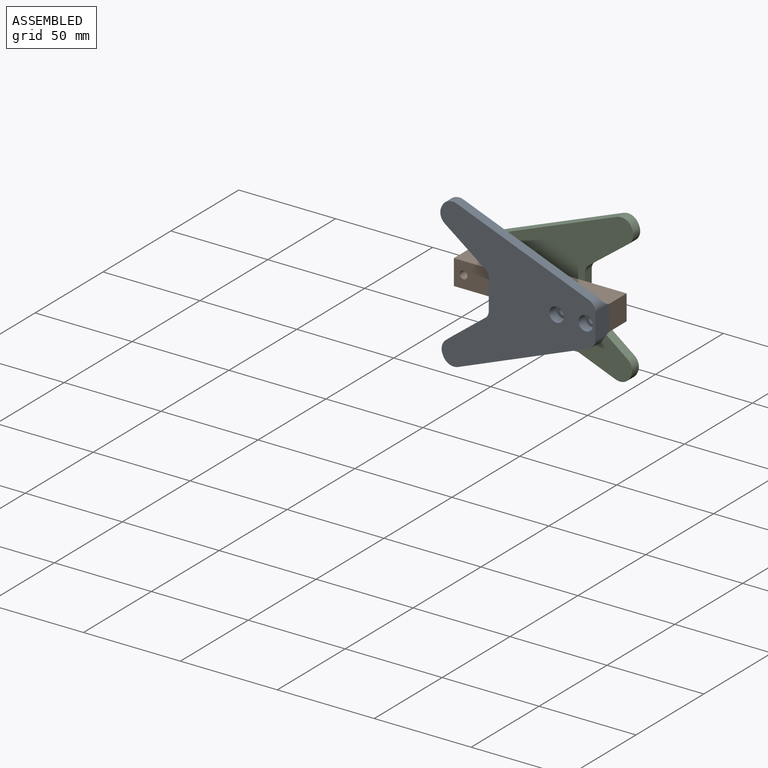
[diagram: assembled view]
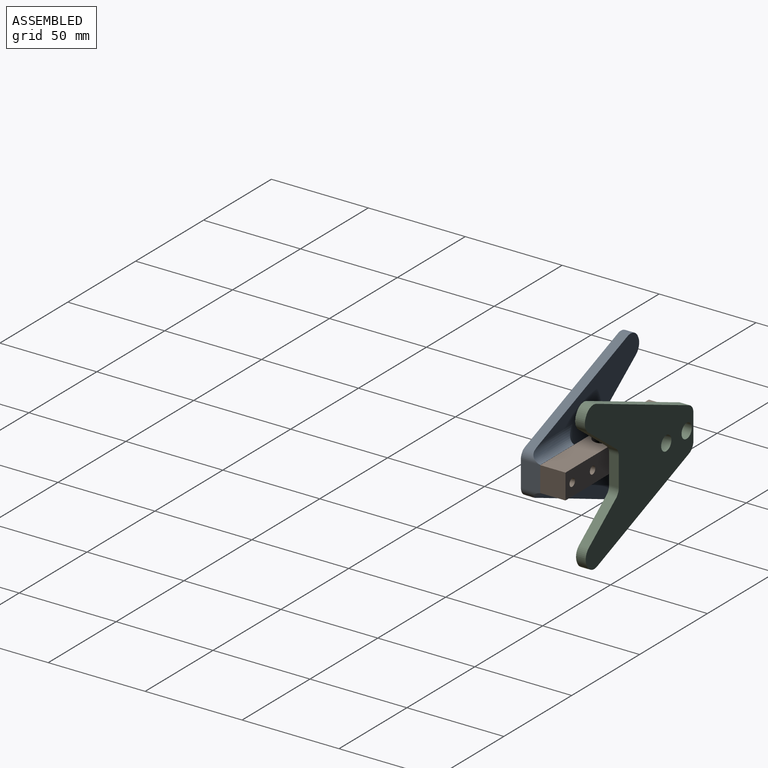
[diagram: assembled view, second angle]
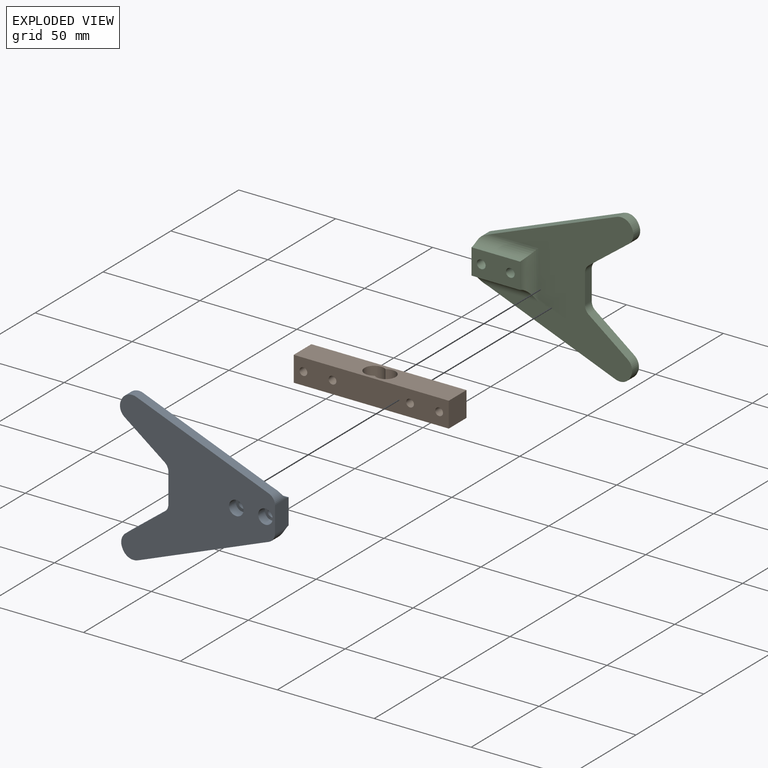
[diagram: exploded view]
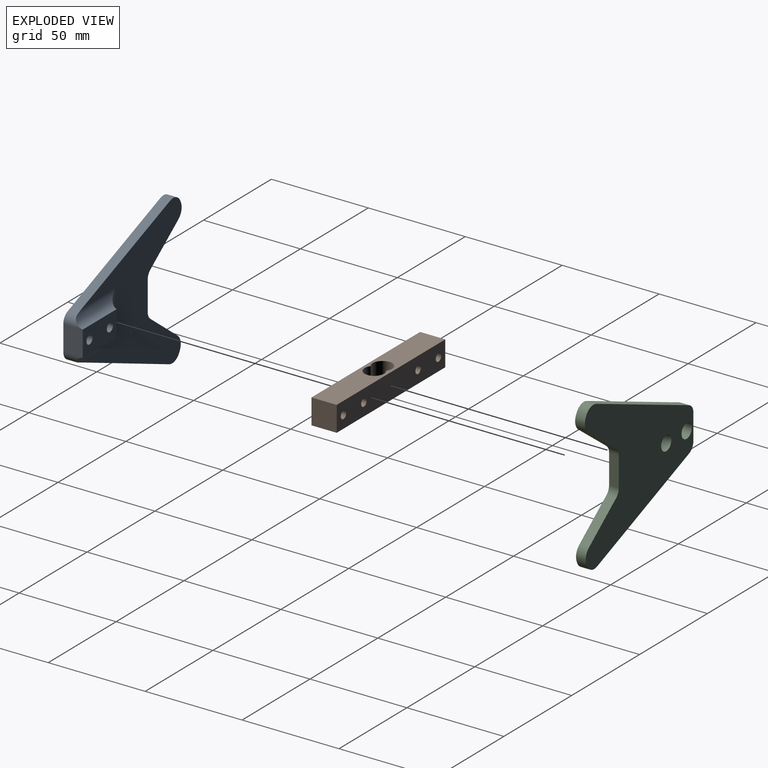
[diagram: exploded view, second angle]
ASSEMBLY  parts=3 mates=2
PART A: 28 faces, bbox 80x10x76.8 mm
  f0: cylinder r=2.25mm len=5mm, axis (0,1,0), area 70.7mm2, adj f16,f27
  f1: cylinder r=2.25mm len=5mm, axis (0,1,0), area 70.7mm2, adj f16,f25
  f2: plane 76.81x73.64mm, normal (0,1,0), area 2334.6mm2, adj f5,f6,f7,f8,f9,f10,f11,f12
  f3: plane 13.19x10mm, normal (1,0,0), area 131.9mm2, adj f4,f14,f15,f16
  f4: cylinder r=5mm len=10mm, axis (0,1,0), area 37.8mm2, adj f3,f5,f15,f17
  f5: plane 68.35x26.78mm, normal (0.36,0,0.93), area 367.1mm2, adj f2,f4,f15,f17,f20
  f6: plane 5x0.62mm, normal (-0.89,0,0.45), area 3.5mm2, adj f2,f15,f20,f21
  f7: plane 20.62x15.49mm, normal (-0.6,0,-0.8), area 128.9mm2, adj f2,f8,f15,f21
  f8: cylinder r=5mm len=5mm, axis (0,1,0), area 23.2mm2, adj f2,f7,f9,f15
  f9: plane 15.05x5mm, normal (-1,0,0), area 75.2mm2, adj f2,f8,f10,f15
  f10: cylinder r=5mm len=5mm, axis (0,1,0), area 22.8mm2, adj f2,f9,f11,f15
  f11: plane 20.08x15.48mm, normal (-0.61,0,0.79), area 126.8mm2, adj f2,f10,f15,f22
  f12: plane 5x0.67mm, normal (-0.89,0,-0.45), area 3.7mm2, adj f2,f15,f22,f23
  f13: plane 67.68x26.75mm, normal (0.37,0,-0.93), area 363.9mm2, adj f2,f14,f15,f18,f23
  f14: cylinder r=5mm len=10mm, axis (0,1,0), area 37.7mm2, adj f3,f13,f15,f18
  f15: plane 80.01x76.81mm, normal (0,-1,0), area 2999.6mm2, adj f3,f4,f5,f6,f7,f8,f9,f10
  f16: plane 25x13.19mm, normal (0,1,0), area 297.9mm2, adj f0,f1,f3,f17,f18,f19
  f17: cylinder r=6mm len=30.92mm, axis (1,0,0), area 219.7mm2, adj f2,f4,f5,f16,f19
  f18: cylinder r=6mm len=30.92mm, axis (1,0,0), area 219.7mm2, adj f2,f13,f14,f16,f19
  f19: cylinder r=6mm len=25.02mm, axis (0,0,1), area 150.7mm2, adj f2,f16,f17,f18
  f20: cylinder r=6mm len=7.55mm, axis (0,1,0), area 44.4mm2, adj f2,f5,f6,f15
  f21: cylinder r=6mm len=7.48mm, axis (0,1,0), area 41.7mm2, adj f2,f6,f7,f15
  f22: cylinder r=6mm len=7.43mm, axis (0,1,0), area 41.3mm2, adj f2,f11,f12,f15
  f23: cylinder r=6mm len=7.57mm, axis (0,1,0), area 44.5mm2, adj f2,f12,f13,f15
  f24: cylinder r=3.75mm len=7.5mm, axis (0,-1,0), area 117.8mm2, adj f15,f25
  f25: plane 7.5x7.5mm, normal (0,-1,0), area 28.3mm2, adj f1,f24
  f26: cylinder r=3.75mm len=7.5mm, axis (0,-1,0), area 117.8mm2, adj f15,f27
  f27: plane 7.5x7.5mm, normal (0,-1,0), area 28.3mm2, adj f0,f26
PART B: 12 faces, bbox 80x13x13 mm
  f0: plane 80x13mm, normal (0,1,0), area 989.7mm2, adj f1,f5,f6,f7,f8,f9,f10,f11
  f1: plane 13x13mm, normal (-1,0,0), area 169mm2, adj f0,f2,f6,f7
  f2: plane 80x13mm, normal (0,-1,0), area 989.7mm2, adj f1,f5,f6,f7,f8,f9,f10,f11
  f3: cylinder r=5mm len=13mm, axis (0,0,-1), area 287.9mm2, adj f4,f6,f7
  f4: cylinder r=5mm len=13mm, axis (0,0,-1), area 287.9mm2, adj f3,f6,f7
  f5: plane 13x13mm, normal (1,0,0), area 169mm2, adj f0,f2,f6,f7
  f6: plane 80x13mm, normal (0,0,1), area 905.3mm2, adj f0,f1,f2,f3,f4,f5
  f7: plane 80x13mm, normal (0,0,-1), area 905.3mm2, adj f0,f1,f2,f3,f4,f5
  f8: cylinder r=2mm len=13mm, axis (0,1,0), area 163.4mm2, adj f0,f2
  f9: cylinder r=2mm len=13mm, axis (0,1,0), area 163.4mm2, adj f0,f2
  f10: cylinder r=2mm len=13mm, axis (0,1,0), area 163.4mm2, adj f0,f2
  f11: cylinder r=2mm len=13mm, axis (0,1,0), area 163.4mm2, adj f0,f2
PART C: same geometry as A
PLACE A t=(20.55,9.43,65.44)mm fixed
PLACE B t=(-2.67,-10.87,-1.13)mm
PLACE C rot(axis=(0,0,1),180deg) t=(1.3,32.43,65.44)mm
MATE fastened C.f0 <-> B.f11  axis (0,-1,0) through (-24.07,27.43,5.37)mm
MATE fastened B.f8 <-> A.f0  axis (0,-1,0) through (45.93,14.43,5.37)mm
